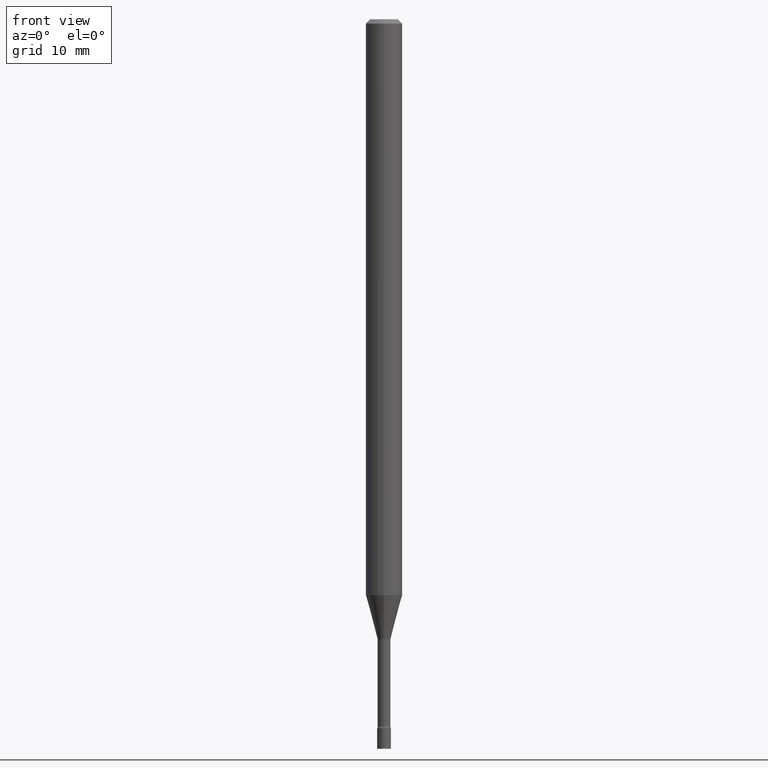
[diagram: clean part render]
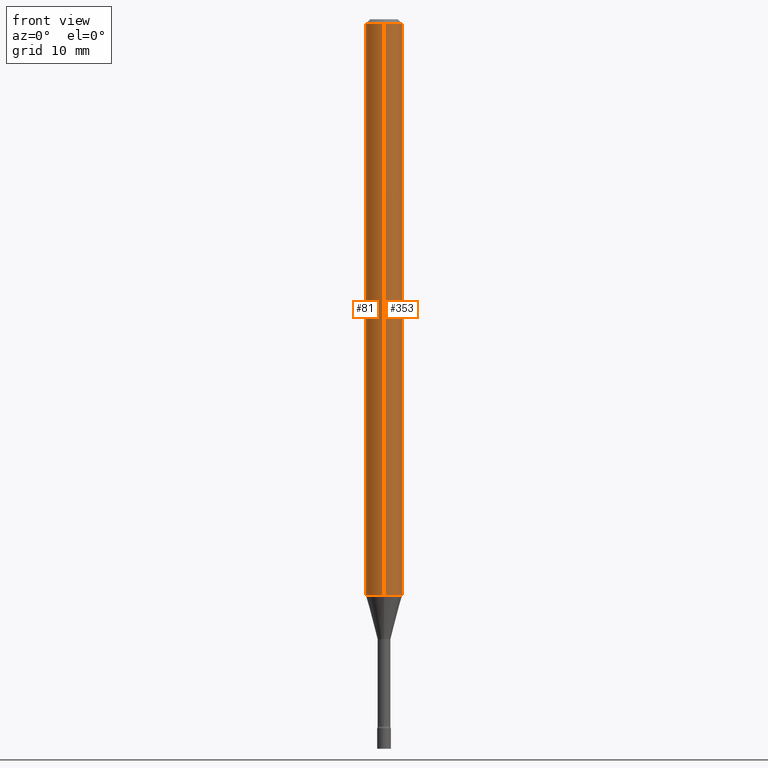
[diagram: same view with one multi-face feature highlighted, each face labeled with its STEP entity id]
A machine part, front view. The highlighted faces form ONE feature: a constant-radius fillet chain: 2 tangent blend faces with common blend radius 1.5875 mm. The faces share edges in the B-rep.
Their STEP definitions:
[1] entity #353 (Cylinder):
#46 = CARTESIAN_POINT ( 'NONE',  ( -4.364351673553434996E-16, -0.06250000000000691114, -1.973225147374217503 ) ) ;
#53 = VECTOR ( 'NONE', #472, 39.37007874015748143 ) ;
#55 = AXIS2_PLACEMENT_3D ( 'NONE', #493, #363, #158 ) ;
#59 = VERTEX_POINT ( 'NONE', #46 ) ;
#63 = ORIENTED_EDGE ( 'NONE', *, *, #232, .T. ) ;
#76 = LINE ( 'NONE', #149, #53 ) ;
#78 = CIRCLE ( 'NONE', #443, 0.06250000000000000000 ) ;
#83 = DIRECTION ( 'NONE',  ( -2.445459864664737566E-29, 3.491494143609276784E-15, 1.000000000000000000 ) ) ;
#89 = CARTESIAN_POINT ( 'NONE',  ( 4.440892098501111311E-16, 0.06249999999999995143, -0.01500000000000024751 ) ) ;
#105 = CARTESIAN_POINT ( 'NONE',  ( -4.364351673553912750E-16, -0.06250000000000005551, -0.01499999999999981209 ) ) ;
#149 = CARTESIAN_POINT ( 'NONE',  ( -4.364351673553916201E-16, -0.06250000000000000000, 2.182183839755797990E-16 ) ) ;
#158 = DIRECTION ( 'NONE',  ( -6.982962677686265922E-15, -1.000000000000000000, 3.491494143609276784E-15 ) ) ;
#190 = CARTESIAN_POINT ( 'NONE',  ( 4.440892098501106381E-16, 0.06249999999999308192, -1.973225147374218169 ) ) ;
#192 = DIRECTION ( 'NONE',  ( -2.445459864664737566E-29, 3.491494143609276390E-15, 1.000000000000000000 ) ) ;
#199 = CARTESIAN_POINT ( 'NONE',  ( 3.668189796997113601E-31, -5.237241215413926147E-17, -0.01500000000000003067 ) ) ;
#214 = VERTEX_POINT ( 'NONE', #105 ) ;
#217 = CIRCLE ( 'NONE', #415, 0.06250000000000000000 ) ;
#229 = LINE ( 'NONE', #389, #474 ) ;
#232 = EDGE_CURVE ( 'NONE', #59, #260, #217, .T. ) ;
#251 = CARTESIAN_POINT ( 'NONE',  ( 4.825442901850811543E-29, -6.889504046079633942E-15, -1.973225147374217947 ) ) ;
#260 = VERTEX_POINT ( 'NONE', #190 ) ;
#284 = VERTEX_POINT ( 'NONE', #89 ) ;
#285 = DIRECTION ( 'NONE',  ( -6.982962677686265922E-15, -1.000000000000000000, 4.370956789862821150E-15 ) ) ;
#303 = EDGE_CURVE ( 'NONE', #59, #214, #76, .T. ) ;
#310 = EDGE_CURVE ( 'NONE', #260, #284, #229, .T. ) ;
#327 = FACE_OUTER_BOUND ( 'NONE', #511, .T. ) ;
#330 = CYLINDRICAL_SURFACE ( 'NONE', #55, 0.06250000000000000000 ) ;
#334 = ORIENTED_EDGE ( 'NONE', *, *, #310, .T. ) ;
#353 = ADVANCED_FACE ( 'NONE', ( #327 ), #330, .T. ) ;
#354 = DIRECTION ( 'NONE',  ( -6.982962677686265922E-15, -1.000000000000000000, 3.483106191921935554E-15 ) ) ;
#363 = DIRECTION ( 'NONE',  ( -2.445459864664737566E-29, 3.491494143609276784E-15, 1.000000000000000000 ) ) ;
#389 = CARTESIAN_POINT ( 'NONE',  ( 4.440892098500625669E-16, 0.06250000000000000000, -2.182183839755797990E-16 ) ) ;
#413 = ORIENTED_EDGE ( 'NONE', *, *, #303, .F. ) ;
#415 = AXIS2_PLACEMENT_3D ( 'NONE', #251, #83, #285 ) ;
#443 = AXIS2_PLACEMENT_3D ( 'NONE', #199, #517, #354 ) ;
#472 = DIRECTION ( 'NONE',  ( -2.445459864664737566E-29, 3.491494143609276390E-15, 1.000000000000000000 ) ) ;
#474 = VECTOR ( 'NONE', #192, 39.37007874015748143 ) ;
#493 = CARTESIAN_POINT ( 'NONE',  ( 0.000000000000000000, 0.000000000000000000, 0.000000000000000000 ) ) ;
#494 = EDGE_CURVE ( 'NONE', #214, #284, #78, .T. ) ;
#506 = ORIENTED_EDGE ( 'NONE', *, *, #494, .F. ) ;
#511 = EDGE_LOOP ( 'NONE', ( #63, #334, #506, #413 ) ) ;
#517 = DIRECTION ( 'NONE',  ( -2.445459864664737566E-29, 3.491494143609276784E-15, 1.000000000000000000 ) ) ;
[2] entity #81 (Cylinder):
#10 = AXIS2_PLACEMENT_3D ( 'NONE', #313, #315, #341 ) ;
#14 = ORIENTED_EDGE ( 'NONE', *, *, #310, .F. ) ;
#22 = ORIENTED_EDGE ( 'NONE', *, *, #481, .F. ) ;
#46 = CARTESIAN_POINT ( 'NONE',  ( -4.364351673553434996E-16, -0.06250000000000691114, -1.973225147374217503 ) ) ;
#48 = ORIENTED_EDGE ( 'NONE', *, *, #365, .T. ) ;
#53 = VECTOR ( 'NONE', #472, 39.37007874015748143 ) ;
#59 = VERTEX_POINT ( 'NONE', #46 ) ;
#76 = LINE ( 'NONE', #149, #53 ) ;
#81 = ADVANCED_FACE ( 'NONE', ( #320 ), #130, .T. ) ;
#85 = CARTESIAN_POINT ( 'NONE',  ( 0.000000000000000000, 0.000000000000000000, 0.000000000000000000 ) ) ;
#89 = CARTESIAN_POINT ( 'NONE',  ( 4.440892098501111311E-16, 0.06249999999999995143, -0.01500000000000024751 ) ) ;
#105 = CARTESIAN_POINT ( 'NONE',  ( -4.364351673553912750E-16, -0.06250000000000005551, -0.01499999999999981209 ) ) ;
#106 = EDGE_LOOP ( 'NONE', ( #14, #48, #468, #22 ) ) ;
#110 = AXIS2_PLACEMENT_3D ( 'NONE', #85, #245, #405 ) ;
#130 = CYLINDRICAL_SURFACE ( 'NONE', #110, 0.06250000000000000000 ) ;
#149 = CARTESIAN_POINT ( 'NONE',  ( -4.364351673553916201E-16, -0.06250000000000000000, 2.182183839755797990E-16 ) ) ;
#161 = DIRECTION ( 'NONE',  ( -2.445459864664737566E-29, 3.491494143609276784E-15, 1.000000000000000000 ) ) ;
#190 = CARTESIAN_POINT ( 'NONE',  ( 4.440892098501106381E-16, 0.06249999999999308192, -1.973225147374218169 ) ) ;
#192 = DIRECTION ( 'NONE',  ( -2.445459864664737566E-29, 3.491494143609276390E-15, 1.000000000000000000 ) ) ;
#209 = DIRECTION ( 'NONE',  ( -6.982962677686265922E-15, -1.000000000000000000, 4.370956789862821150E-15 ) ) ;
#214 = VERTEX_POINT ( 'NONE', #105 ) ;
#229 = LINE ( 'NONE', #389, #474 ) ;
#235 = CIRCLE ( 'NONE', #10, 0.06250000000000000000 ) ;
#245 = DIRECTION ( 'NONE',  ( -2.445459864664737566E-29, 3.491494143609276784E-15, 1.000000000000000000 ) ) ;
#260 = VERTEX_POINT ( 'NONE', #190 ) ;
#284 = VERTEX_POINT ( 'NONE', #89 ) ;
#303 = EDGE_CURVE ( 'NONE', #59, #214, #76, .T. ) ;
#310 = EDGE_CURVE ( 'NONE', #260, #284, #229, .T. ) ;
#313 = CARTESIAN_POINT ( 'NONE',  ( 3.668189796997113601E-31, -5.237241215413926147E-17, -0.01500000000000003067 ) ) ;
#315 = DIRECTION ( 'NONE',  ( -2.445459864664737566E-29, 3.491494143609276784E-15, 1.000000000000000000 ) ) ;
#320 = FACE_OUTER_BOUND ( 'NONE', #106, .T. ) ;
#341 = DIRECTION ( 'NONE',  ( -6.982962677686265922E-15, -1.000000000000000000, 3.483106191921935554E-15 ) ) ;
#343 = CIRCLE ( 'NONE', #486, 0.06250000000000000000 ) ;
#365 = EDGE_CURVE ( 'NONE', #260, #59, #343, .T. ) ;
#389 = CARTESIAN_POINT ( 'NONE',  ( 4.440892098500625669E-16, 0.06250000000000000000, -2.182183839755797990E-16 ) ) ;
#405 = DIRECTION ( 'NONE',  ( -6.982962677686265922E-15, -1.000000000000000000, 3.491494143609276784E-15 ) ) ;
#407 = CARTESIAN_POINT ( 'NONE',  ( 4.825442901850811543E-29, -6.889504046079633942E-15, -1.973225147374217947 ) ) ;
#468 = ORIENTED_EDGE ( 'NONE', *, *, #303, .T. ) ;
#472 = DIRECTION ( 'NONE',  ( -2.445459864664737566E-29, 3.491494143609276390E-15, 1.000000000000000000 ) ) ;
#474 = VECTOR ( 'NONE', #192, 39.37007874015748143 ) ;
#481 = EDGE_CURVE ( 'NONE', #284, #214, #235, .T. ) ;
#486 = AXIS2_PLACEMENT_3D ( 'NONE', #407, #161, #209 ) ;